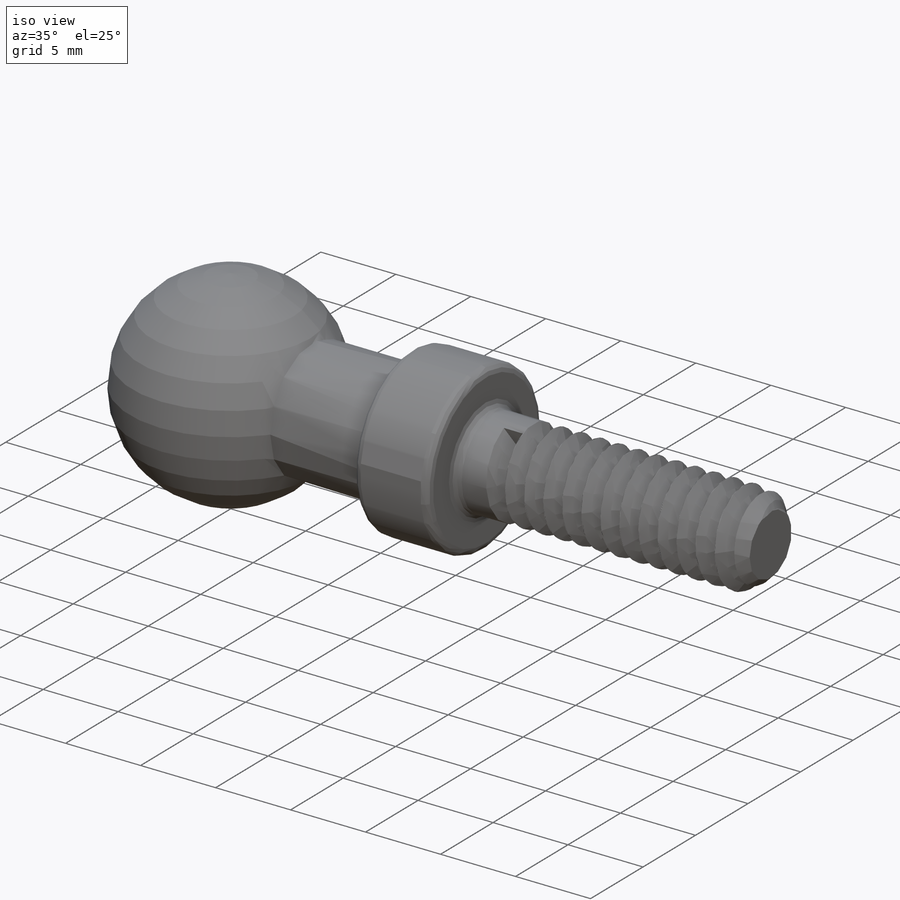
[diagram: iso view]
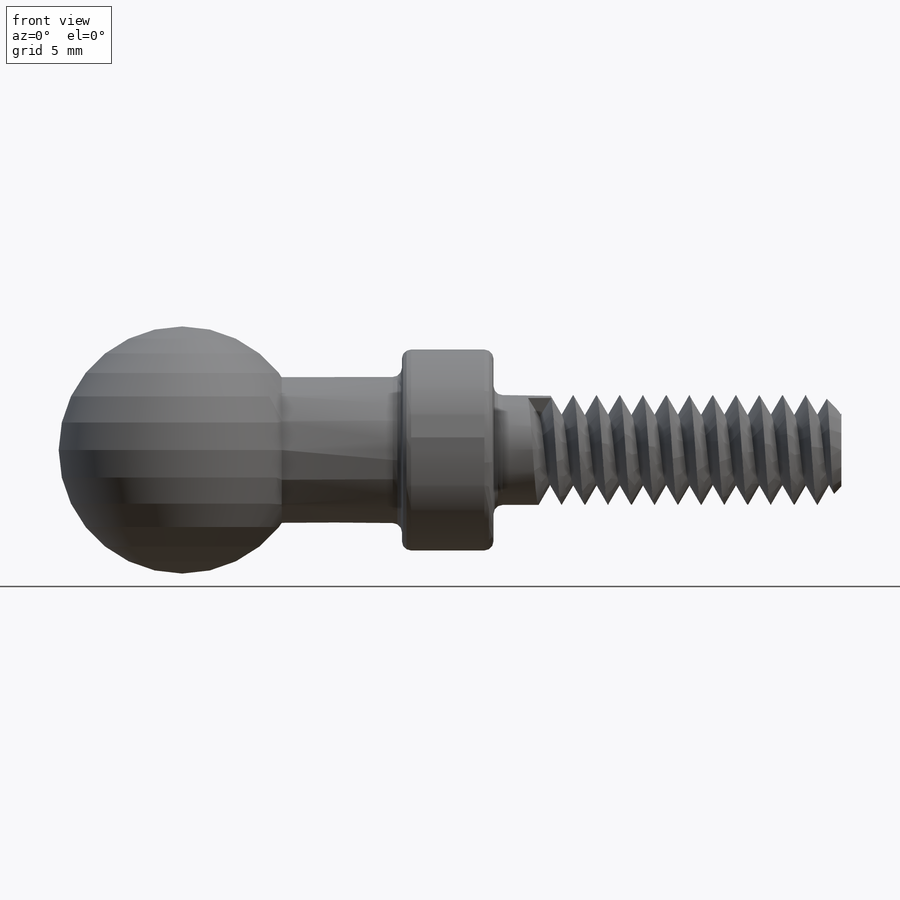
[diagram: front view]
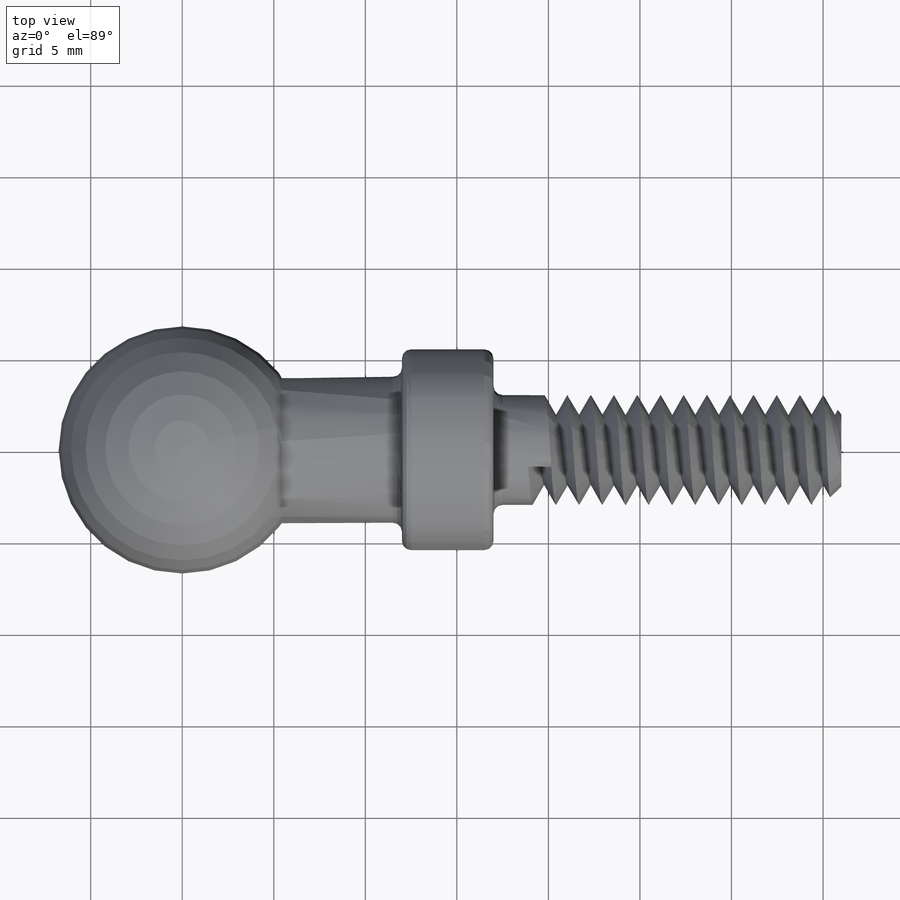
[diagram: top view]
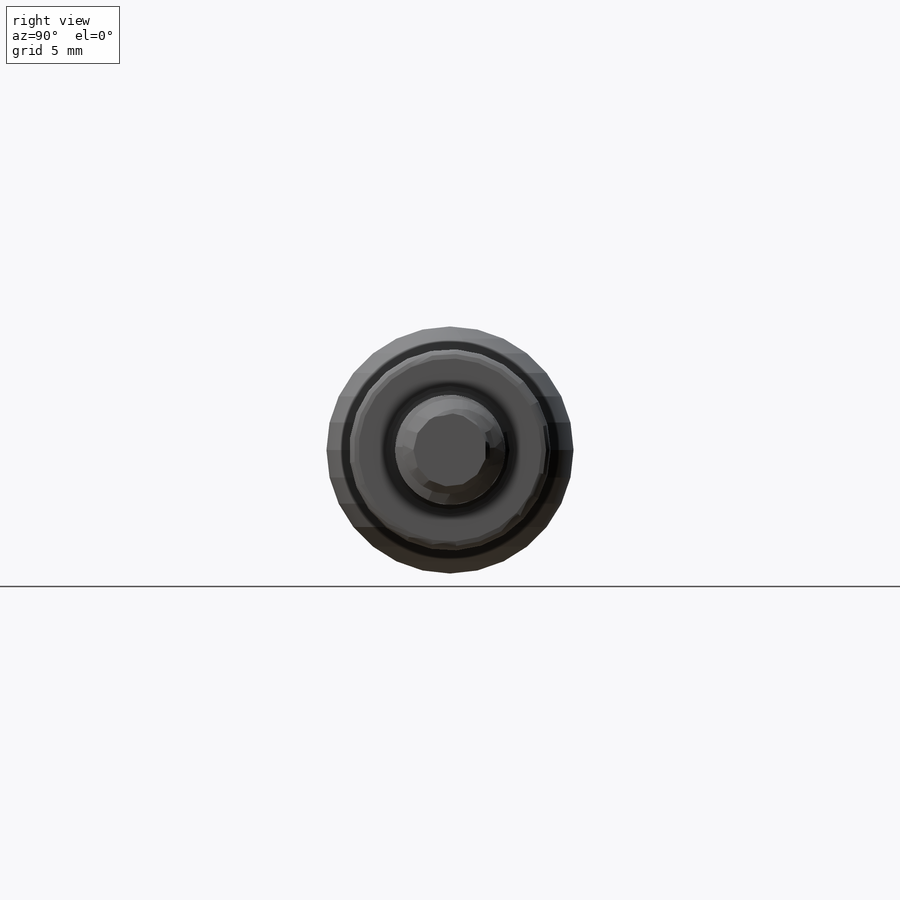
[diagram: right view]
SOLIDWORKS PART (.sldprt)
format: sldprt  version: not decoded by parser v0  size: 482,304 bytes
history: native  units: mm
features: sketch x6, plane x4, extrude x3, material x1, revolve x1, chamfer x1, helix x1, sweep x1, fillet x1 (+8 scaffold rows collapsed)
feature tree (27):
  scaffold x8  (default folders/planes/origin — collapsed)
  material  "Материал <не указан>"
  plane  "Спереди"
  plane  "Сверху"
  plane  "Справа"
  sketch  "Эскиз1"  dims[D1=13.5mm]
  revolve  "Повернуть1"  Angle=360deg
  sketch  "Эскиз2"  dims[D1=8.0mm]
  extrude  "Бобышка-Вытянуть1"  Depth=12mm
  sketch  "Эскиз3"  dims[D1=11.0mm]
  extrude  "Бобышка-Вытянуть2"  Depth=5mm
  sketch  "Эскиз5"  dims[D1=6.0mm]
  extrude  "Бобышка-Вытянуть3"  Depth=19mm
  chamfer  "Фаска1"  Distance=1mm Angle=45deg
  plane  "Плоскость1"  Offset=5mm
  sketch  "Эскиз6"  dims[D1=6.0mm]
  helix  "Спираль1"  Pitch=22mm
  sketch  "Эскиз7"  dims[c1.D1=~0.714346mm c2.D1=60.0deg c2.D2=~1.378161mm c3.D2=60.0deg c3.D3=1.26mm]
  sweep  "Вырез-По траектории2"
  fillet  "Скругление1"  Radius=0.5mm
decode coverage: 13 of 14 modeling features carry decoded parameters
note: ~ marks probable driven/reference dimensions
note: suppression state not decoded; provenance and decode notes live in map.json
